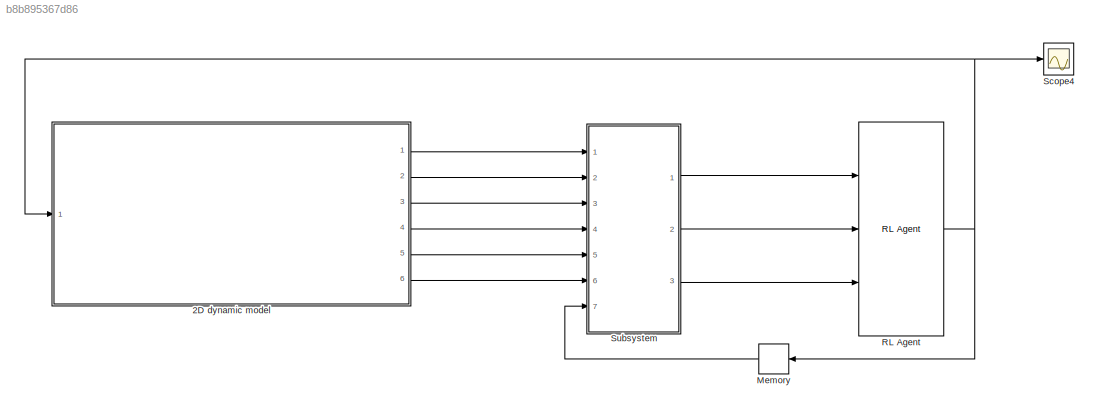
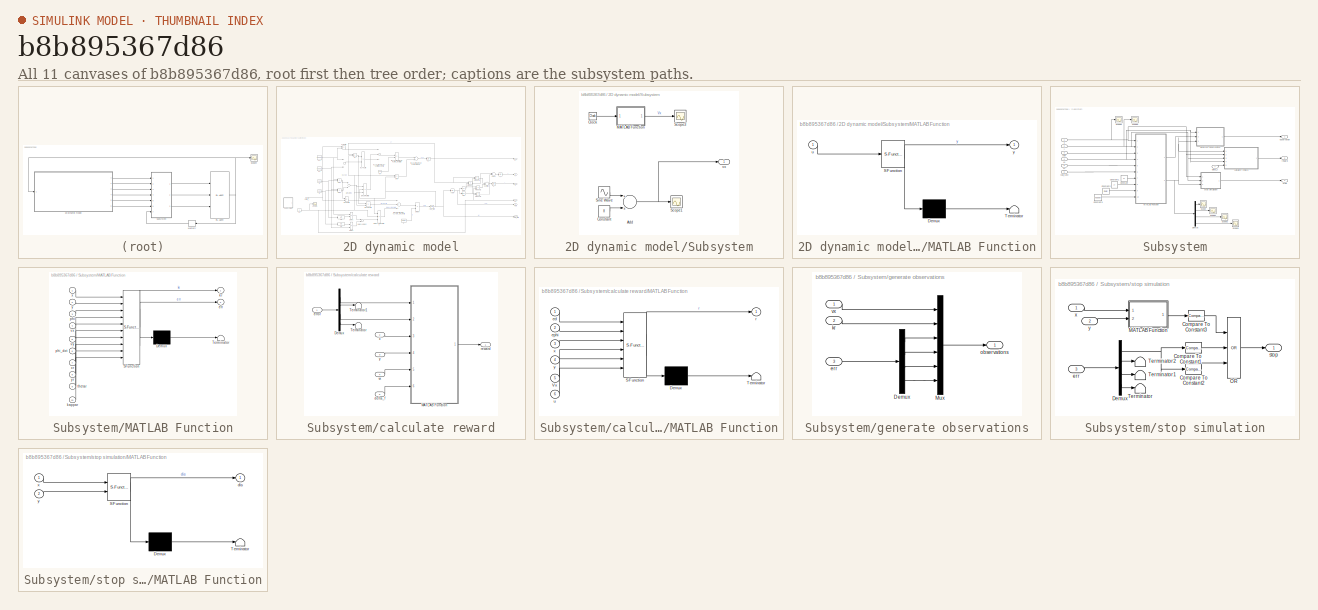
[diagram: thumbnail index - all 11 canvases of the model, root first then tree order]
MODEL slx_b8b895367d86
KIND model
CONFIG AbsTol = auto
CONFIG EnableMultiTasking = off
CONFIG FixedStep = auto
CONFIG MaxStep = auto
CONFIG MinStep = auto
CONFIG RelTol = 1e-3
CONFIG SampleTimeConstraint = Unconstrained
CONFIG Solver = ode45
CONFIG SolverName = ode45
CONFIG StartTime = 0.0
CONFIG StopTime = 60
WORKSPACE source: mxarray member
WORKSPACE kappar = [0 0 0 0 0 0 0 0 0 0 0 0 ... (4802 elements, 1x4802)]
WORKSPACE thetar = [0 0 0 0 0 0 0 0 0 0 0 0 ... (4802 elements, 1x4802)]
WORKSPACE xr = [0.0501253132832 0.100250626566 0.15037593985 0.200501253133 0.250626566416 0.300751879699 0.350877192982 0.401002506266 0.451127819549 0.501253132832 0.551378446115 0.601503759398 ... (4802 elements, 1x4802)]
WORKSPACE yr = [0 0 0 0 0 0 0 0 0 0 0 0 ... (4802 elements, 1x4802)]
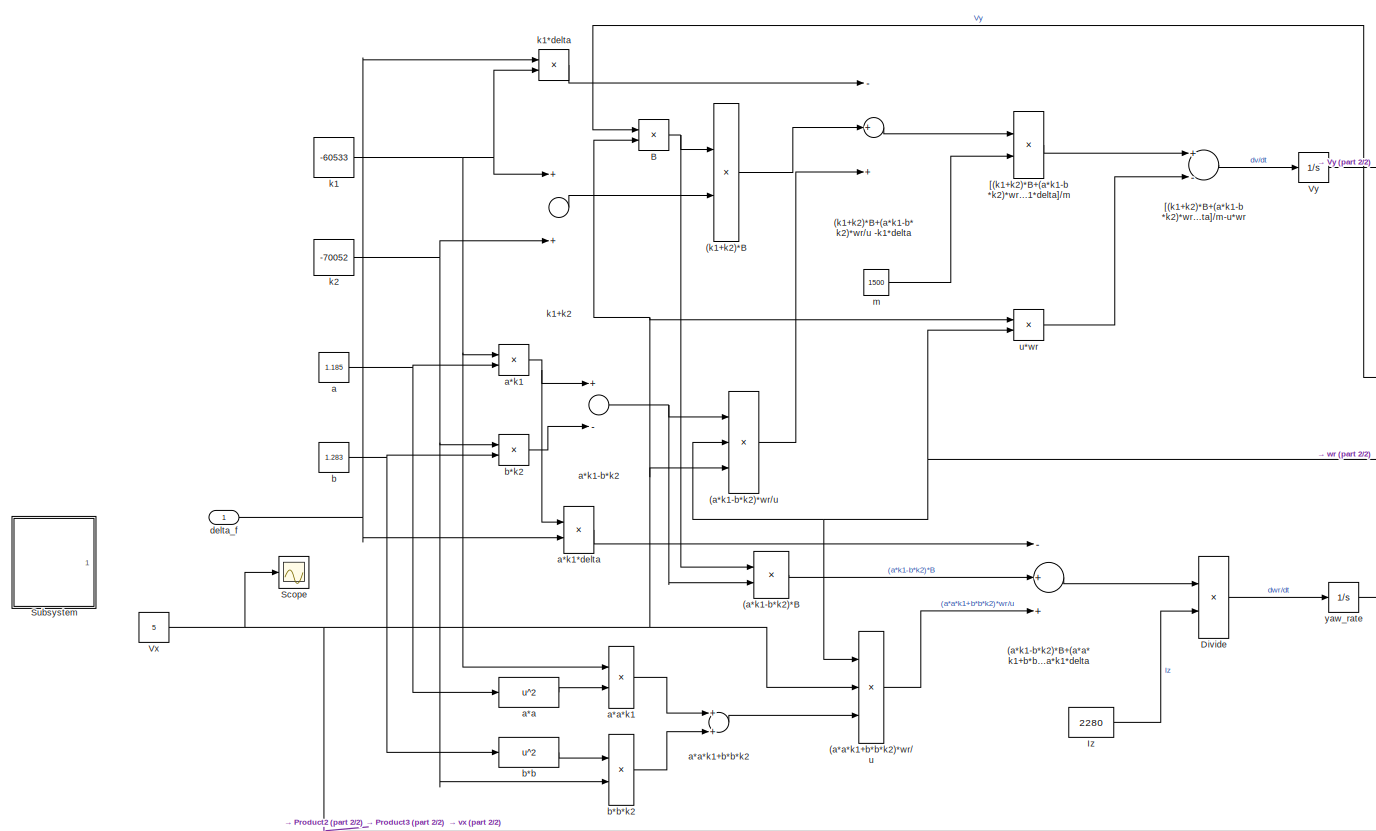
[diagram: 2D dynamic model - part 1/2, left side, full height]
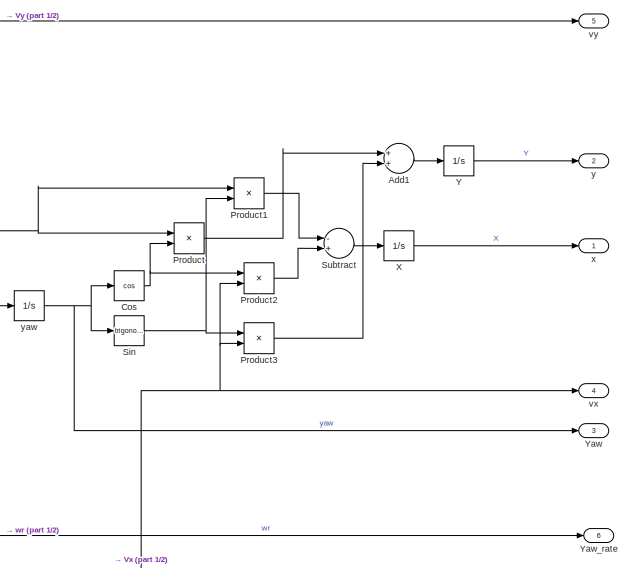
[diagram: 2D dynamic model - part 2/2, middle right region]
BLOCK [SubSystem] 2D dynamic model
  Ports = [1, 6]
  RequestExecContextInheritance = off
BLOCK [Product] 2D dynamic model/(a*a*k1+b*b*k2)*wr//u
  InputSameDT = off
  Inputs = */*
  OutDataTypeStr = Inherit: Inherit via internal rule
  Ports = [3, 1]
  RndMeth = Floor
  SaturateOnIntegerOverflow = off
BLOCK [Product] 2D dynamic model/(a*k1-b*k2)*B
  InputSameDT = off
  OutDataTypeStr = Inherit: Inherit via internal rule
  Ports = [2, 1]
  RndMeth = Floor
  SaturateOnIntegerOverflow = off
BLOCK [Sum] 2D dynamic model/(a*k1-b*k2)*B+(a*a*k1+b*b*k2)*wr//u -a*k1*delta
  InputSameDT = off
  Inputs = -++
  OutDataTypeStr = Inherit: Inherit via internal rule
  Ports = [3, 1]
  SaturateOnIntegerOverflow = off
BLOCK [Product] 2D dynamic model/(a*k1-b*k2)*wr//u
  InputSameDT = off
  Inputs = **/
  OutDataTypeStr = Inherit: Inherit via internal rule
  Ports = [3, 1]
  RndMeth = Floor
  SaturateOnIntegerOverflow = off
BLOCK [Product] 2D dynamic model/(k1+k2)*B
  InputSameDT = off
  OutDataTypeStr = Inherit: Inherit via internal rule
  Ports = [2, 1]
  RndMeth = Floor
  SaturateOnIntegerOverflow = off
BLOCK [Sum] 2D dynamic model/(k1+k2)*B+(a*k1-b*k2)*wr//u -k1*delta
  InputSameDT = off
  Inputs = -++
  OutDataTypeStr = Inherit: Inherit via internal rule
  Ports = [3, 1]
  SaturateOnIntegerOverflow = off
BLOCK [Sum] 2D dynamic model/Add1
  InputSameDT = off
  OutDataTypeStr = Inherit: Inherit via internal rule
  Ports = [2, 1]
  SaturateOnIntegerOverflow = off
BLOCK [Product] 2D dynamic model/B
  InputSameDT = off
  Inputs = */
  OutDataTypeStr = Inherit: Inherit via internal rule
  Ports = [2, 1]
  RndMeth = Floor
  SaturateOnIntegerOverflow = off
BLOCK [Trigonometry] 2D dynamic model/Cos
  Operator = cos
  Ports = [1, 1]
BLOCK [Product] 2D dynamic model/Divide
  InputSameDT = off
  Inputs = */
  OutDataTypeStr = Inherit: Inherit via internal rule
  Ports = [2, 1]
  RndMeth = Floor
  SaturateOnIntegerOverflow = off
BLOCK [Constant] 2D dynamic model/Iz
  Value = 2280
BLOCK [Product] 2D dynamic model/Product
  InputSameDT = off
  OutDataTypeStr = Inherit: Inherit via internal rule
  Ports = [2, 1]
  RndMeth = Floor
  SaturateOnIntegerOverflow = off
BLOCK [Product] 2D dynamic model/Product1
  InputSameDT = off
  OutDataTypeStr = Inherit: Inherit via internal rule
  Ports = [2, 1]
  RndMeth = Floor
  SaturateOnIntegerOverflow = off
BLOCK [Product] 2D dynamic model/Product2
  InputSameDT = off
  OutDataTypeStr = Inherit: Inherit via internal rule
  Ports = [2, 1]
  RndMeth = Floor
  SaturateOnIntegerOverflow = off
BLOCK [Product] 2D dynamic model/Product3
  InputSameDT = off
  OutDataTypeStr = Inherit: Inherit via internal rule
  Ports = [2, 1]
  RndMeth = Floor
  SaturateOnIntegerOverflow = off
BLOCK [Scope] 2D dynamic model/Scope
  Floating = off
  NumInputPorts = 1
  Ports = [1]
  ScopeSpecificationString = Simulink.scopes.TimeScopeBlockCfg('CurrentConfiguration', extmgr.ConfigurationSet(extmgr.Configuration('Core','General UI',true),extmgr.Configuration('Core','Source UI',true),extmgr.Configuration('Sources','WiredSimulink',true,'DataLoggingVariableName','speed','DataLogging',true,'DataLoggingSaveFormat','Array'),extmgr.Configuration('Visuals','Time Domain',true,'SerializedDisplays',{struct('MinYLim...<+1591ch>
BLOCK [Trigonometry] 2D dynamic model/Sin
  Ports = [1, 1]
BLOCK [SubSystem] 2D dynamic model/Subsystem
  Commented = on
  Ports = [0, 1]
  RequestExecContextInheritance = off
BLOCK [Sum] 2D dynamic model/Subsystem/Add
  InputSameDT = off
  OutDataTypeStr = Inherit: Inherit via internal rule
  Ports = [2, 1]
  SaturateOnIntegerOverflow = off
BLOCK [Clock] 2D dynamic model/Subsystem/Clock
BLOCK [Constant] 2D dynamic model/Subsystem/Constant
  Value = 8
BLOCK [SubSystem] 2D dynamic model/Subsystem/MATLAB Function
  ErrorFcn = Stateflow.Translate.translate
  PermitHierarchicalResolution = ExplicitOnly
  Ports = [1, 1]
  RequestExecContextInheritance = off
  SFBlockType = MATLAB Function
  TreatAsAtomicUnit = on
BLOCK [Demux] 2D dynamic model/Subsystem/MATLAB Function/ Demux 
  Outputs = 1
  Ports = [1, 1]
BLOCK [S-Function] 2D dynamic model/Subsystem/MATLAB Function/ SFunction 
  EnableBusSupport = on
  FunctionName = sf_sfun
  PortCounts = [1 2]
  Ports = [1, 2]
  SFcnIsStateOwnerBlock = off
  SFunctionDeploymentMode = off
  Tag = Stateflow S-Function 4
BLOCK [Terminator] 2D dynamic model/Subsystem/MATLAB Function/ Terminator 
BLOCK [Inport] 2D dynamic model/Subsystem/MATLAB Function/u
  IconDisplay = Port number
BLOCK [Outport] 2D dynamic model/Subsystem/MATLAB Function/y
  IconDisplay = Port number
BLOCK [Scope] 2D dynamic model/Subsystem/Scope1
  Floating = off
  NumInputPorts = 1
  Ports = [1]
  ScopeSpecificationString = Simulink.scopes.TimeScopeBlockCfg('CurrentConfiguration', extmgr.ConfigurationSet(extmgr.Configuration('Core','General UI',true),extmgr.Configuration('Core','Source UI',true),extmgr.Configuration('Sources','WiredSimulink',true,'DataLoggingVariableName','ScopeData2'),extmgr.Configuration('Visuals','Time Domain',true,'SerializedDisplays',{struct('MinYLimReal','4.5','MaxYLimReal','9.5','YLabelReal','...<+1361ch>
BLOCK [Scope] 2D dynamic model/Subsystem/Scope3
  Floating = off
  NumInputPorts = 1
  Ports = [1]
  ScopeSpecificationString = Simulink.scopes.TimeScopeBlockCfg('CurrentConfiguration', extmgr.ConfigurationSet(extmgr.Configuration('Core','General UI',true),extmgr.Configuration('Core','Source UI',true),extmgr.Configuration('Sources','WiredSimulink',true,'DataLoggingVariableName','ScopeData4'),extmgr.Configuration('Visuals','Time Domain',true,'SerializedDisplays',{struct('MinYLimReal','4.5','MaxYLimReal','9.5','YLabelReal','...<+1361ch>
BLOCK [Sin] 2D dynamic model/Subsystem/Sine Wave
  Amplitude = 5
  Frequency = 0.05*pi
  Ports = [0, 1]
  SampleTime = 0.1
BLOCK [Outport] 2D dynamic model/Subsystem/vx
  IconDisplay = Port number
BLOCK [Sum] 2D dynamic model/Subtract
  InputSameDT = off
  Inputs = -+
  OutDataTypeStr = Inherit: Inherit via internal rule
  Ports = [2, 1]
  SaturateOnIntegerOverflow = off
BLOCK [Constant] 2D dynamic model/Vx
  Value = 5
BLOCK [Integrator] 2D dynamic model/Vy
  Ports = [1, 1]
BLOCK [Integrator] 2D dynamic model/X
  Ports = [1, 1]
BLOCK [Integrator] 2D dynamic model/Y
  Ports = [1, 1]
BLOCK [Outport] 2D dynamic model/Yaw
  IconDisplay = Port number
  Port = 3
  VectorParamsAs1DForOutWhenUnconnected = off
BLOCK [Outport] 2D dynamic model/Yaw_rate
  IconDisplay = Port number
  Port = 6
  VectorParamsAs1DForOutWhenUnconnected = off
BLOCK [Product] 2D dynamic model/[(k1+k2)*B+(a*k1-b*k2)*wr//u -k1*delta]//m
  InputSameDT = off
  Inputs = */
  OutDataTypeStr = Inherit: Inherit via internal rule
  Ports = [2, 1]
  RndMeth = Floor
  SaturateOnIntegerOverflow = off
BLOCK [Sum] 2D dynamic model/[(k1+k2)*B+(a*k1-b*k2)*wr//u -k1*delta]//m-u*wr
  InputSameDT = off
  Inputs = +-
  OutDataTypeStr = Inherit: Inherit via internal rule
  Ports = [2, 1]
  SaturateOnIntegerOverflow = off
BLOCK [Constant] 2D dynamic model/a
  Value = 1.185
BLOCK [Fcn] 2D dynamic model/a*a
  Expr = u^2
BLOCK [Product] 2D dynamic model/a*a*k1
  InputSameDT = off
  OutDataTypeStr = Inherit: Inherit via internal rule
  Ports = [2, 1]
  RndMeth = Floor
  SaturateOnIntegerOverflow = off
BLOCK [Sum] 2D dynamic model/a*a*k1+b*b*k2
  InputSameDT = off
  OutDataTypeStr = Inherit: Inherit via internal rule
  Ports = [2, 1]
  SaturateOnIntegerOverflow = off
BLOCK [Product] 2D dynamic model/a*k1
  InputSameDT = off
  OutDataTypeStr = Inherit: Inherit via internal rule
  Ports = [2, 1]
  RndMeth = Floor
  SaturateOnIntegerOverflow = off
BLOCK [Product] 2D dynamic model/a*k1*delta
  InputSameDT = off
  OutDataTypeStr = Inherit: Inherit via internal rule
  Ports = [2, 1]
  RndMeth = Floor
  SaturateOnIntegerOverflow = off
BLOCK [Sum] 2D dynamic model/a*k1-b*k2
  InputSameDT = off
  Inputs = +-
  OutDataTypeStr = Inherit: Inherit via internal rule
  Ports = [2, 1]
  SaturateOnIntegerOverflow = off
BLOCK [Constant] 2D dynamic model/b
  Value = 1.283
BLOCK [Fcn] 2D dynamic model/b*b
  Expr = u^2
BLOCK [Product] 2D dynamic model/b*b*k2
  InputSameDT = off
  OutDataTypeStr = Inherit: Inherit via internal rule
  Ports = [2, 1]
  RndMeth = Floor
  SaturateOnIntegerOverflow = off
BLOCK [Product] 2D dynamic model/b*k2
  InputSameDT = off
  OutDataTypeStr = Inherit: Inherit via internal rule
  Ports = [2, 1]
  RndMeth = Floor
  SaturateOnIntegerOverflow = off
BLOCK [Inport] 2D dynamic model/delta_f
  IconDisplay = Port number
BLOCK [Constant] 2D dynamic model/k1
  Value = -60533
BLOCK [Product] 2D dynamic model/k1*delta
  InputSameDT = off
  OutDataTypeStr = Inherit: Inherit via internal rule
  Ports = [2, 1]
  RndMeth = Floor
  SaturateOnIntegerOverflow = off
BLOCK [Sum] 2D dynamic model/k1+k2
  InputSameDT = off
  OutDataTypeStr = Inherit: Inherit via internal rule
  Ports = [2, 1]
  SaturateOnIntegerOverflow = off
BLOCK [Constant] 2D dynamic model/k2
  Value = -70052
BLOCK [Constant] 2D dynamic model/m
  Value = 1500
BLOCK [Product] 2D dynamic model/u*wr
  InputSameDT = off
  OutDataTypeStr = Inherit: Inherit via internal rule
  Ports = [2, 1]
  RndMeth = Floor
  SaturateOnIntegerOverflow = off
BLOCK [Outport] 2D dynamic model/vx
  IconDisplay = Port number
  Port = 4
  VectorParamsAs1DForOutWhenUnconnected = off
BLOCK [Outport] 2D dynamic model/vy
  IconDisplay = Port number
  Port = 5
  VectorParamsAs1DForOutWhenUnconnected = off
BLOCK [Outport] 2D dynamic model/x
  IconDisplay = Port number
  VectorParamsAs1DForOutWhenUnconnected = off
BLOCK [Outport] 2D dynamic model/y
  IconDisplay = Port number
  Port = 2
  VectorParamsAs1DForOutWhenUnconnected = off
BLOCK [Integrator] 2D dynamic model/yaw
  Ports = [1, 1]
BLOCK [Integrator] 2D dynamic model/yaw_rate
  Ports = [1, 1]
BLOCK [Memory] Memory
BLOCK [Reference] RL Agent  REF=rllib/RL Agent
  Ports = [3, 1]
  SourceBlock = rllib/RL Agent
  SourceProductBaseCode = RL
  SourceProductName = Reinforcement Learning Toolbox
  SourceType = RL Agent
BLOCK [Scope] Scope4
  Floating = off
  NumInputPorts = 1
  Ports = [1]
  ScopeSpecificationString = Simulink.scopes.TimeScopeBlockCfg('CurrentConfiguration', extmgr.ConfigurationSet(extmgr.Configuration('Core','General UI',true),extmgr.Configuration('Core','Source UI',true),extmgr.Configuration('Sources','WiredSimulink',true,'DataLoggingVariableName','steer','DataLoggingSaveFormat','Array'),extmgr.Configuration('Visuals','Time Domain',true,'SerializedDisplays',{struct('MinYLimReal','-0.25709','M...<+1452ch>
BLOCK [SubSystem] Subsystem
  Ports = [7, 3]
  RequestExecContextInheritance = off
BLOCK [Constant] Subsystem/Constant
  Value = xr
BLOCK [Constant] Subsystem/Constant1
  Value = yr
BLOCK [Constant] Subsystem/Constant2
  Value = thetar
BLOCK [Constant] Subsystem/Constant3
  Value = kappar
BLOCK [Demux] Subsystem/Demux
  DisplayOption = bar
  Ports = [1, 4]
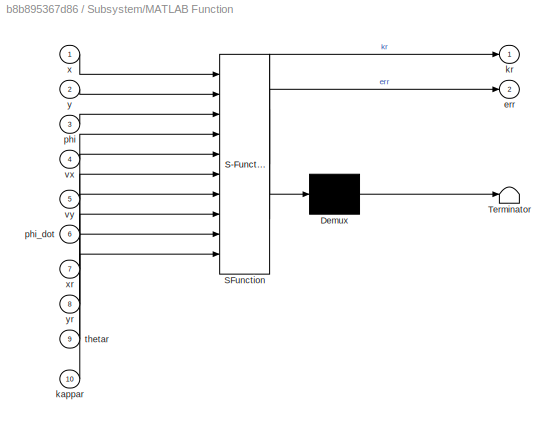
BLOCK [SubSystem] Subsystem/MATLAB Function
  ErrorFcn = Stateflow.Translate.translate
  PermitHierarchicalResolution = ExplicitOnly
  Ports = [10, 2]
  RequestExecContextInheritance = off
  SFBlockType = MATLAB Function
  TreatAsAtomicUnit = on
BLOCK [Demux] Subsystem/MATLAB Function/ Demux 
  Outputs = 1
  Ports = [1, 1]
BLOCK [S-Function] Subsystem/MATLAB Function/ SFunction 
  EnableBusSupport = on
  FunctionName = sf_sfun
  PortCounts = [10 3]
  Ports = [10, 3]
  SFcnIsStateOwnerBlock = off
  SFunctionDeploymentMode = off
  Tag = Stateflow S-Function 2
BLOCK [Terminator] Subsystem/MATLAB Function/ Terminator 
BLOCK [Outport] Subsystem/MATLAB Function/err
  IconDisplay = Port number
  Port = 2
BLOCK [Inport] Subsystem/MATLAB Function/kappar
  IconDisplay = Port number
  Port = 10
BLOCK [Outport] Subsystem/MATLAB Function/kr
  IconDisplay = Port number
BLOCK [Inport] Subsystem/MATLAB Function/phi
  IconDisplay = Port number
  Port = 3
BLOCK [Inport] Subsystem/MATLAB Function/phi_dot
  IconDisplay = Port number
  Port = 6
BLOCK [Inport] Subsystem/MATLAB Function/thetar
  IconDisplay = Port number
  Port = 9
BLOCK [Inport] Subsystem/MATLAB Function/vx
  IconDisplay = Port number
  Port = 4
BLOCK [Inport] Subsystem/MATLAB Function/vy
  IconDisplay = Port number
  Port = 5
BLOCK [Inport] Subsystem/MATLAB Function/x
  IconDisplay = Port number
BLOCK [Inport] Subsystem/MATLAB Function/xr
  IconDisplay = Port number
  Port = 7
BLOCK [Inport] Subsystem/MATLAB Function/y
  IconDisplay = Port number
  Port = 2
BLOCK [Inport] Subsystem/MATLAB Function/yr
  IconDisplay = Port number
  Port = 8
BLOCK [Scope] Subsystem/Scope
  Floating = off
  NumInputPorts = 1
  Ports = [1]
  ScopeSpecificationString = Simulink.scopes.TimeScopeBlockCfg('CurrentConfiguration', extmgr.ConfigurationSet(extmgr.Configuration('Core','General UI',true,'FigureColor',[1 1 1]),extmgr.Configuration('Core','Source UI',true),extmgr.Configuration('Sources','WiredSimulink',true,'DataLogging',true,'DataLoggingVariableName','ed','DataLoggingSaveFormat','Array'),extmgr.Configuration('Visuals','Time Domain',true,'SerializedDisplay...<+1587ch>
BLOCK [Scope] Subsystem/Scope1
  Floating = off
  NumInputPorts = 1
  Ports = [1]
  ScopeSpecificationString = Simulink.scopes.TimeScopeBlockCfg('CurrentConfiguration', extmgr.ConfigurationSet(extmgr.Configuration('Core','General UI',true),extmgr.Configuration('Core','Source UI',true),extmgr.Configuration('Sources','WiredSimulink',true,'DataLoggingVariableName','ScopeData1'),extmgr.Configuration('Visuals','Time Domain',true,'SerializedDisplays',{struct('MinYLimReal','-0.72004','MaxYLimReal','0.55429','YLab...<+1391ch>
BLOCK [Scope] Subsystem/Scope2
  Floating = off
  NumInputPorts = 1
  Ports = [1]
  ScopeSpecificationString = Simulink.scopes.TimeScopeBlockCfg('CurrentConfiguration', extmgr.ConfigurationSet(extmgr.Configuration('Core','General UI',true,'FigureColor',[1 1 1]),extmgr.Configuration('Core','Source UI',true),extmgr.Configuration('Sources','WiredSimulink',true,'DataLoggingVariableName','efai','DataLogging',true,'DataLoggingSaveFormat','Array'),extmgr.Configuration('Visuals','Time Domain',true,'SerializedDispl...<+1689ch>
BLOCK [Scope] Subsystem/Scope3
  Floating = off
  NumInputPorts = 1
  Ports = [1]
  ScopeSpecificationString = Simulink.scopes.TimeScopeBlockCfg('CurrentConfiguration', extmgr.ConfigurationSet(extmgr.Configuration('Core','General UI',true),extmgr.Configuration('Core','Source UI',true),extmgr.Configuration('Sources','WiredSimulink',true,'DataLoggingVariableName','ScopeData3'),extmgr.Configuration('Visuals','Time Domain',true,'SerializedDisplays',{struct('MinYLimReal','-0.53485','MaxYLimReal','0.55878','YLab...<+1398ch>
BLOCK [Scope] Subsystem/Scope5
  Floating = off
  NumInputPorts = 1
  Ports = [1]
  ScopeSpecificationString = Simulink.scopes.TimeScopeBlockCfg('CurrentConfiguration', extmgr.ConfigurationSet(extmgr.Configuration('Core','General UI',true),extmgr.Configuration('Core','Source UI',true),extmgr.Configuration('Sources','WiredSimulink',true,'DataLoggingVariableName','x','DataLogging',true,'DataLoggingSaveFormat','Array'),extmgr.Configuration('Visuals','Time Domain',true,'SerializedDisplays',{struct('MinYLimReal...<+1412ch>
BLOCK [Scope] Subsystem/Scope6
  Floating = off
  NumInputPorts = 1
  Ports = [1]
  ScopeSpecificationString = Simulink.scopes.TimeScopeBlockCfg('CurrentConfiguration', extmgr.ConfigurationSet(extmgr.Configuration('Core','General UI',true),extmgr.Configuration('Core','Source UI',true),extmgr.Configuration('Sources','WiredSimulink',true,'DataLoggingVariableName','y','DataLogging',true,'DataLoggingSaveFormat','Array'),extmgr.Configuration('Visuals','Time Domain',true,'SerializedDisplays',{struct('MinYLimReal...<+1439ch>
BLOCK [SubSystem] Subsystem/calculate reward
  Ports = [5, 1]
  RequestExecContextInheritance = off
BLOCK [Demux] Subsystem/calculate reward/Demux
  DisplayOption = bar
  Ports = [1, 4]
BLOCK [SubSystem] Subsystem/calculate reward/MATLAB Function
  ErrorFcn = Stateflow.Translate.translate
  PermitHierarchicalResolution = ExplicitOnly
  Ports = [6, 1]
  RequestExecContextInheritance = off
  SFBlockType = MATLAB Function
  TreatAsAtomicUnit = on
BLOCK [Demux] Subsystem/calculate reward/MATLAB Function/ Demux 
  Outputs = 1
  Ports = [1, 1]
BLOCK [S-Function] Subsystem/calculate reward/MATLAB Function/ SFunction 
  EnableBusSupport = on
  FunctionName = sf_sfun
  PortCounts = [6 2]
  Ports = [6, 2]
  SFcnIsStateOwnerBlock = off
  SFunctionDeploymentMode = off
  Tag = Stateflow S-Function 1
BLOCK [Terminator] Subsystem/calculate reward/MATLAB Function/ Terminator 
BLOCK [Inport] Subsystem/calculate reward/MATLAB Function/Vx
  IconDisplay = Port number
  Port = 5
BLOCK [Inport] Subsystem/calculate reward/MATLAB Function/ed
  IconDisplay = Port number
BLOCK [Inport] Subsystem/calculate reward/MATLAB Function/ephi
  IconDisplay = Port number
  Port = 2
BLOCK [Outport] Subsystem/calculate reward/MATLAB Function/r
  IconDisplay = Port number
BLOCK [Inport] Subsystem/calculate reward/MATLAB Function/u
  IconDisplay = Port number
  Port = 6
BLOCK [Inport] Subsystem/calculate reward/MATLAB Function/x
  IconDisplay = Port number
  Port = 3
BLOCK [Inport] Subsystem/calculate reward/MATLAB Function/y
  IconDisplay = Port number
  Port = 4
BLOCK [Terminator] Subsystem/calculate reward/Terminator
BLOCK [Terminator] Subsystem/calculate reward/Terminator1
BLOCK [Inport] Subsystem/calculate reward/delta_f
  IconDisplay = Port number
  Port = 5
BLOCK [Inport] Subsystem/calculate reward/error
  IconDisplay = Port number
BLOCK [Outport] Subsystem/calculate reward/reward
  IconDisplay = Port number
  VectorParamsAs1DForOutWhenUnconnected = off
BLOCK [Inport] Subsystem/calculate reward/vx
  IconDisplay = Port number
  Port = 4
BLOCK [Inport] Subsystem/calculate reward/x
  IconDisplay = Port number
  Port = 2
BLOCK [Inport] Subsystem/calculate reward/y
  IconDisplay = Port number
  Port = 3
BLOCK [Inport] Subsystem/delta_f
  IconDisplay = Port number
  Port = 7
BLOCK [SubSystem] Subsystem/generate observations
  Ports = [3, 1]
  RequestExecContextInheritance = off
BLOCK [Demux] Subsystem/generate observations/Demux
  DisplayOption = bar
  Ports = [1, 4]
BLOCK [Mux] Subsystem/generate observations/Mux
  DisplayOption = bar
  Inputs = 6
  Ports = [6, 1]
BLOCK [Inport] Subsystem/generate observations/err
  IconDisplay = Port number
  Port = 3
BLOCK [Inport] Subsystem/generate observations/kr
  IconDisplay = Port number
  Port = 2
BLOCK [Outport] Subsystem/generate observations/observations
  IconDisplay = Port number
BLOCK [Inport] Subsystem/generate observations/vx
  IconDisplay = Port number
BLOCK [Outport] Subsystem/observation
  IconDisplay = Port number
BLOCK [Outport] Subsystem/reward
  IconDisplay = Port number
  Port = 2
BLOCK [Outport] Subsystem/stop
  IconDisplay = Port number
  Port = 3
BLOCK [SubSystem] Subsystem/stop simulation
  Ports = [3, 1]
  RequestExecContextInheritance = off
BLOCK [Reference] Subsystem/stop simulation/Compare To Constant1  REF=simulink/Logic and Bit
Operations/Compare
To Constant
  Ports = [1, 1]
  SourceBlock = simulink/Logic and Bit\nOperations/Compare\nTo Constant
  SourceProductBaseCode = SL
  SourceProductName = Simulink
  SourceType = Compare To Constant
BLOCK [Reference] Subsystem/stop simulation/Compare To Constant2  REF=simulink/Logic and Bit
Operations/Compare
To Constant
  Ports = [1, 1]
  SourceBlock = simulink/Logic and Bit\nOperations/Compare\nTo Constant
  SourceProductBaseCode = SL
  SourceProductName = Simulink
  SourceType = Compare To Constant
BLOCK [Reference] Subsystem/stop simulation/Compare To Constant3  REF=simulink/Logic and Bit
Operations/Compare
To Constant
  Ports = [1, 1]
  SourceBlock = simulink/Logic and Bit\nOperations/Compare\nTo Constant
  SourceProductBaseCode = SL
  SourceProductName = Simulink
  SourceType = Compare To Constant
BLOCK [Demux] Subsystem/stop simulation/Demux
  DisplayOption = bar
  Ports = [1, 4]
BLOCK [SubSystem] Subsystem/stop simulation/MATLAB Function
  ErrorFcn = Stateflow.Translate.translate
  PermitHierarchicalResolution = ExplicitOnly
  Ports = [2, 1]
  RequestExecContextInheritance = off
  SFBlockType = MATLAB Function
  TreatAsAtomicUnit = on
BLOCK [Demux] Subsystem/stop simulation/MATLAB Function/ Demux 
  Outputs = 1
  Ports = [1, 1]
BLOCK [S-Function] Subsystem/stop simulation/MATLAB Function/ SFunction 
  EnableBusSupport = on
  FunctionName = sf_sfun
  PortCounts = [2 2]
  Ports = [2, 2]
  SFcnIsStateOwnerBlock = off
  SFunctionDeploymentMode = off
  Tag = Stateflow S-Function 3
BLOCK [Terminator] Subsystem/stop simulation/MATLAB Function/ Terminator 
BLOCK [Outport] Subsystem/stop simulation/MATLAB Function/dis
  IconDisplay = Port number
BLOCK [Inport] Subsystem/stop simulation/MATLAB Function/x
  IconDisplay = Port number
BLOCK [Inport] Subsystem/stop simulation/MATLAB Function/y
  IconDisplay = Port number
  Port = 2
BLOCK [Logic] Subsystem/stop simulation/OR
  AllPortsSameDT = off
  IconShape = distinctive
  Inputs = 3
  Operator = OR
  OutDataTypeStr = boolean
  Ports = [3, 1]
BLOCK [Terminator] Subsystem/stop simulation/Terminator
BLOCK [Terminator] Subsystem/stop simulation/Terminator1
BLOCK [Terminator] Subsystem/stop simulation/Terminator2
BLOCK [Inport] Subsystem/stop simulation/err
  IconDisplay = Port number
  Port = 3
BLOCK [Outport] Subsystem/stop simulation/stop
  IconDisplay = Port number
  VectorParamsAs1DForOutWhenUnconnected = off
BLOCK [Inport] Subsystem/stop simulation/x
  IconDisplay = Port number
BLOCK [Inport] Subsystem/stop simulation/y
  IconDisplay = Port number
  Port = 2
BLOCK [Inport] Subsystem/vx
  IconDisplay = Port number
  Port = 4
BLOCK [Inport] Subsystem/vy
  IconDisplay = Port number
  Port = 5
BLOCK [Inport] Subsystem/x
  IconDisplay = Port number
BLOCK [Inport] Subsystem/y
  IconDisplay = Port number
  Port = 2
BLOCK [Inport] Subsystem/yaw
  IconDisplay = Port number
  Port = 3
BLOCK [Inport] Subsystem/yaw_rate
  IconDisplay = Port number
  Port = 6
LINE 2D dynamic model/(a*a*k1+b*b*k2)*wr//u:1 -> 2D dynamic model/(a*k1-b*k2)*B+(a*a*k1+b*b*k2)*wr//u -a*k1*delta:3
LINE 2D dynamic model/(a*k1-b*k2)*B+(a*a*k1+b*b*k2)*wr//u -a*k1*delta:1 -> 2D dynamic model/Divide:1
LINE 2D dynamic model/(a*k1-b*k2)*B:1 -> 2D dynamic model/(a*k1-b*k2)*B+(a*a*k1+b*b*k2)*wr//u -a*k1*delta:2
LINE 2D dynamic model/(a*k1-b*k2)*wr//u:1 -> 2D dynamic model/(k1+k2)*B+(a*k1-b*k2)*wr//u -k1*delta:3
LINE 2D dynamic model/(k1+k2)*B+(a*k1-b*k2)*wr//u -k1*delta:1 -> 2D dynamic model/[(k1+k2)*B+(a*k1-b*k2)*wr//u -k1*delta]//m:1
LINE 2D dynamic model/(k1+k2)*B:1 -> 2D dynamic model/(k1+k2)*B+(a*k1-b*k2)*wr//u -k1*delta:2
LINE 2D dynamic model/Add1:1 -> 2D dynamic model/Y:1
NET 2D dynamic model/B:1 -> 2D dynamic model/(a*k1-b*k2)*B:1, 2D dynamic model/(k1+k2)*B:1
NET 2D dynamic model/Cos:1 -> 2D dynamic model/Product2:1, 2D dynamic model/Product:2
LINE 2D dynamic model/Divide:1 -> 2D dynamic model/yaw_rate:1
LINE 2D dynamic model/Iz:1 -> 2D dynamic model/Divide:2
LINE 2D dynamic model/Product1:1 -> 2D dynamic model/Subtract:1
LINE 2D dynamic model/Product2:1 -> 2D dynamic model/Subtract:2
LINE 2D dynamic model/Product3:1 -> 2D dynamic model/Add1:2
LINE 2D dynamic model/Product:1 -> 2D dynamic model/Add1:1
NET 2D dynamic model/Sin:1 -> 2D dynamic model/Product1:2, 2D dynamic model/Product3:1
NET 2D dynamic model/Subsystem/Add:1 -> 2D dynamic model/Subsystem/Scope1:1, 2D dynamic model/Subsystem/vx:1
LINE 2D dynamic model/Subsystem/Clock:1 -> 2D dynamic model/Subsystem/MATLAB Function:1
LINE 2D dynamic model/Subsystem/Constant:1 -> 2D dynamic model/Subsystem/Add:2
LINE 2D dynamic model/Subsystem/MATLAB Function:1 -> 2D dynamic model/Subsystem/Scope3:1
LINE 2D dynamic model/Subsystem/Sine Wave:1 -> 2D dynamic model/Subsystem/Add:1
LINE 2D dynamic model/Subtract:1 -> 2D dynamic model/X:1
NET 2D dynamic model/Vx:1 -> 2D dynamic model/(a*a*k1+b*b*k2)*wr//u:2, 2D dynamic model/(a*k1-b*k2)*wr//u:3, 2D dynamic model/B:2, 2D dynamic model/Product2:2, 2D dynamic model/Product3:2, 2D dynamic model/Scope:1, 2D dynamic model/u*wr:1, 2D dynamic model/vx:1
NET 2D dynamic model/Vy:1 -> 2D dynamic model/B:1, 2D dynamic model/Product1:1, 2D dynamic model/Product:1, 2D dynamic model/vy:1
LINE 2D dynamic model/X:1 -> 2D dynamic model/x:1
LINE 2D dynamic model/Y:1 -> 2D dynamic model/y:1
LINE 2D dynamic model/[(k1+k2)*B+(a*k1-b*k2)*wr//u -k1*delta]//m-u*wr:1 -> 2D dynamic model/Vy:1
LINE 2D dynamic model/[(k1+k2)*B+(a*k1-b*k2)*wr//u -k1*delta]//m:1 -> 2D dynamic model/[(k1+k2)*B+(a*k1-b*k2)*wr//u -k1*delta]//m-u*wr:1
LINE 2D dynamic model/a*a*k1+b*b*k2:1 -> 2D dynamic model/(a*a*k1+b*b*k2)*wr//u:3
LINE 2D dynamic model/a*a*k1:1 -> 2D dynamic model/a*a*k1+b*b*k2:1
LINE 2D dynamic model/a*a:1 -> 2D dynamic model/a*a*k1:2
LINE 2D dynamic model/a*k1*delta:1 -> 2D dynamic model/(a*k1-b*k2)*B+(a*a*k1+b*b*k2)*wr//u -a*k1*delta:1
NET 2D dynamic model/a*k1-b*k2:1 -> 2D dynamic model/(a*k1-b*k2)*B:2, 2D dynamic model/(a*k1-b*k2)*wr//u:1
NET 2D dynamic model/a*k1:1 -> 2D dynamic model/a*k1*delta:1, 2D dynamic model/a*k1-b*k2:1
NET 2D dynamic model/a:1 -> 2D dynamic model/a*a:1, 2D dynamic model/a*k1:2
LINE 2D dynamic model/b*b*k2:1 -> 2D dynamic model/a*a*k1+b*b*k2:2
LINE 2D dynamic model/b*b:1 -> 2D dynamic model/b*b*k2:1
LINE 2D dynamic model/b*k2:1 -> 2D dynamic model/a*k1-b*k2:2
NET 2D dynamic model/b:1 -> 2D dynamic model/b*b:1, 2D dynamic model/b*k2:2
NET 2D dynamic model/delta_f:1 -> 2D dynamic model/a*k1*delta:2, 2D dynamic model/k1*delta:1
LINE 2D dynamic model/k1*delta:1 -> 2D dynamic model/(k1+k2)*B+(a*k1-b*k2)*wr//u -k1*delta:1
LINE 2D dynamic model/k1+k2:1 -> 2D dynamic model/(k1+k2)*B:2
NET 2D dynamic model/k1:1 -> 2D dynamic model/a*a*k1:1, 2D dynamic model/a*k1:1, 2D dynamic model/k1*delta:2, 2D dynamic model/k1+k2:1
NET 2D dynamic model/k2:1 -> 2D dynamic model/b*b*k2:2, 2D dynamic model/b*k2:1, 2D dynamic model/k1+k2:2
LINE 2D dynamic model/m:1 -> 2D dynamic model/[(k1+k2)*B+(a*k1-b*k2)*wr//u -k1*delta]//m:2
LINE 2D dynamic model/u*wr:1 -> 2D dynamic model/[(k1+k2)*B+(a*k1-b*k2)*wr//u -k1*delta]//m-u*wr:2
NET 2D dynamic model/yaw:1 -> 2D dynamic model/Cos:1, 2D dynamic model/Sin:1, 2D dynamic model/Yaw:1
NET 2D dynamic model/yaw_rate:1 -> 2D dynamic model/(a*a*k1+b*b*k2)*wr//u:1, 2D dynamic model/(a*k1-b*k2)*wr//u:2, 2D dynamic model/Yaw_rate:1, 2D dynamic model/u*wr:2, 2D dynamic model/yaw:1
LINE 2D dynamic model:1 -> Subsystem:1
LINE 2D dynamic model:2 -> Subsystem:2
LINE 2D dynamic model:3 -> Subsystem:3
LINE 2D dynamic model:4 -> Subsystem:4
LINE 2D dynamic model:5 -> Subsystem:5
LINE 2D dynamic model:6 -> Subsystem:6
LINE Memory:1 -> Subsystem:7
NET RL Agent:1 -> 2D dynamic model:1, Memory:1, Scope4:1
LINE Subsystem/Constant1:1 -> Subsystem/MATLAB Function:8
LINE Subsystem/Constant2:1 -> Subsystem/MATLAB Function:9
LINE Subsystem/Constant3:1 -> Subsystem/MATLAB Function:10
LINE Subsystem/Constant:1 -> Subsystem/MATLAB Function:7
LINE Subsystem/Demux:1 -> Subsystem/Scope:1
LINE Subsystem/Demux:2 -> Subsystem/Scope1:1
LINE Subsystem/Demux:3 -> Subsystem/Scope2:1
LINE Subsystem/Demux:4 -> Subsystem/Scope3:1
LINE Subsystem/MATLAB Function:1 -> Subsystem/generate observations:2
NET Subsystem/MATLAB Function:2 -> Subsystem/Demux:1, Subsystem/calculate reward:1, Subsystem/generate observations:3, Subsystem/stop simulation:3
LINE Subsystem/calculate reward/Demux:1 -> Subsystem/calculate reward/MATLAB Function:1
LINE Subsystem/calculate reward/Demux:2 -> Subsystem/calculate reward/Terminator1:1
LINE Subsystem/calculate reward/Demux:3 -> Subsystem/calculate reward/MATLAB Function:2
LINE Subsystem/calculate reward/Demux:4 -> Subsystem/calculate reward/Terminator:1
LINE Subsystem/calculate reward/MATLAB Function:1 -> Subsystem/calculate reward/reward:1
LINE Subsystem/calculate reward/delta_f:1 -> Subsystem/calculate reward/MATLAB Function:6
LINE Subsystem/calculate reward/error:1 -> Subsystem/calculate reward/Demux:1
LINE Subsystem/calculate reward/vx:1 -> Subsystem/calculate reward/MATLAB Function:5
LINE Subsystem/calculate reward/x:1 -> Subsystem/calculate reward/MATLAB Function:3
LINE Subsystem/calculate reward/y:1 -> Subsystem/calculate reward/MATLAB Function:4
LINE Subsystem/calculate reward:1 -> Subsystem/reward:1
LINE Subsystem/delta_f:1 -> Subsystem/calculate reward:5
LINE Subsystem/generate observations/Demux:1 -> Subsystem/generate observations/Mux:3
LINE Subsystem/generate observations/Demux:2 -> Subsystem/generate observations/Mux:4
LINE Subsystem/generate observations/Demux:3 -> Subsystem/generate observations/Mux:5
LINE Subsystem/generate observations/Demux:4 -> Subsystem/generate observations/Mux:6
LINE Subsystem/generate observations/Mux:1 -> Subsystem/generate observations/observations:1
LINE Subsystem/generate observations/err:1 -> Subsystem/generate observations/Demux:1
LINE Subsystem/generate observations/kr:1 -> Subsystem/generate observations/Mux:2
LINE Subsystem/generate observations/vx:1 -> Subsystem/generate observations/Mux:1
LINE Subsystem/generate observations:1 -> Subsystem/observation:1
LINE Subsystem/stop simulation/Compare To Constant1:1 -> Subsystem/stop simulation/OR:2
LINE Subsystem/stop simulation/Compare To Constant2:1 -> Subsystem/stop simulation/OR:3
LINE Subsystem/stop simulation/Compare To Constant3:1 -> Subsystem/stop simulation/OR:1
NET Subsystem/stop simulation/Demux:1 -> Subsystem/stop simulation/Compare To Constant1:1, Subsystem/stop simulation/Compare To Constant2:1
LINE Subsystem/stop simulation/Demux:2 -> Subsystem/stop simulation/Terminator2:1
LINE Subsystem/stop simulation/Demux:3 -> Subsystem/stop simulation/Terminator1:1
LINE Subsystem/stop simulation/Demux:4 -> Subsystem/stop simulation/Terminator:1
LINE Subsystem/stop simulation/MATLAB Function:1 -> Subsystem/stop simulation/Compare To Constant3:1
LINE Subsystem/stop simulation/OR:1 -> Subsystem/stop simulation/stop:1
LINE Subsystem/stop simulation/err:1 -> Subsystem/stop simulation/Demux:1
LINE Subsystem/stop simulation/x:1 -> Subsystem/stop simulation/MATLAB Function:1
LINE Subsystem/stop simulation/y:1 -> Subsystem/stop simulation/MATLAB Function:2
LINE Subsystem/stop simulation:1 -> Subsystem/stop:1
NET Subsystem/vx:1 -> Subsystem/MATLAB Function:4, Subsystem/calculate reward:4, Subsystem/generate observations:1
LINE Subsystem/vy:1 -> Subsystem/MATLAB Function:5
NET Subsystem/x:1 -> Subsystem/MATLAB Function:1, Subsystem/Scope5:1, Subsystem/calculate reward:2, Subsystem/stop simulation:1
NET Subsystem/y:1 -> Subsystem/MATLAB Function:2, Subsystem/Scope6:1, Subsystem/calculate reward:3, Subsystem/stop simulation:2
LINE Subsystem/yaw:1 -> Subsystem/MATLAB Function:3
LINE Subsystem/yaw_rate:1 -> Subsystem/MATLAB Function:6
LINE Subsystem:1 -> RL Agent:1
LINE Subsystem:2 -> RL Agent:2
LINE Subsystem:3 -> RL Agent:3
note: NET lines group one-source signal fan-out (src -> all destinations, sorted); 1:1 wires keep LINE
CHART Subsystem/calculate reward/MATLAB Function states=1 transitions=1
  STATE_LABEL 'eML_blk_kernel()'
  STATE_LABEL 'SCRIPT:\nfunction r = fcn(ed, ephi, x, y, Vx, u)\n\nr1 = -(ed*ed + 0.5*ephi*ephi + 0.1*u*u); % 限制转向角大小\n\nif abs(ed) <= 0.2\n    H = 2;\nelseif abs(ed) <= 0.5\n    H = 1;\nelse\n    H = 0;\nend\n\nif abs(ed) >= 2\n    F = 2;\nelseif abs(ed) >= 1\n    F = 1;\nelse\n    F = 0;\nend\n\nif abs(ephi) <= 5/180*pi\n    M = 2;\nelseif abs(ephi) <= 10/180*pi\n    M = 1;\nelse\n    M = 0;\nend\n\nif abs(ephi) >= 20/180*pi\n    N = 1;\nel...<+171ch>'
CHART Subsystem/MATLAB Function states=1 transitions=1
  STATE_LABEL 'eML_blk_kernel()'
  STATE_LABEL "SCRIPT:\nfunction [kr,err] = fcn(x,y,phi,vx,vy,phi_dot,xr,yr,thetar,kappar)\n\nn=length(xr);\nd_min=(x-xr(1))^2+(y-yr(1))^2;\nmin=1;\nfor i=1:n\n    d=(x-xr(i))^2+(y-yr(i))^2;\n    if d<d_min\n        d_min=d;\n        min=i;\n    end\nend\ndmin=min;\ntor=[cos(thetar(dmin));sin(thetar(dmin))];\nnor=[-sin(thetar(dmin));cos(thetar(dmin))];\nd_err=[x-xr(dmin);y-yr(dmin)];\ned=nor'*d_err;\nes=tor'*d_err;\n%projection_po...<+408ch>"
CHART Subsystem/stop simulation/MATLAB Function states=1 transitions=1
  STATE_LABEL 'eML_blk_kernel()'
  STATE_LABEL 'SCRIPT:\nfunction dis = fcn(x, y)\n\nx0 = 240;\ny0 = 0;\ndis = ((x-x0)^2 + (y-y0)^2)^0.5;\n\n'
CHART 2D dynamic model/Subsystem/MATLAB Function states=1 transitions=1
  STATE_LABEL 'eML_blk_kernel()'
  STATE_LABEL 'SCRIPT:\nfunction y = fcn(u)\n\nif u <= 25\n    y = 5+0.2*u;\nelse\n    y = 10;\nend\n'
